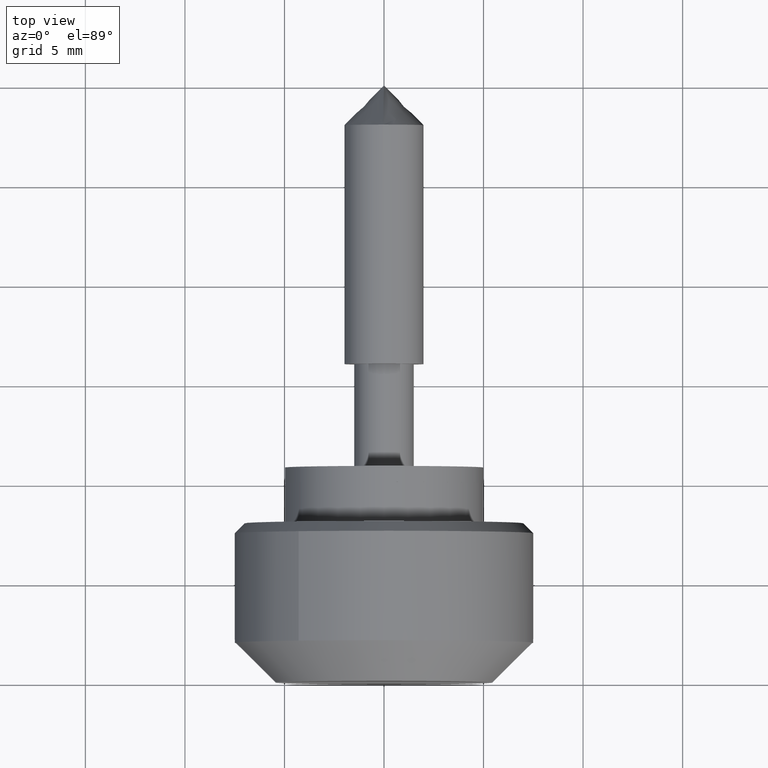
[diagram: clean part render]
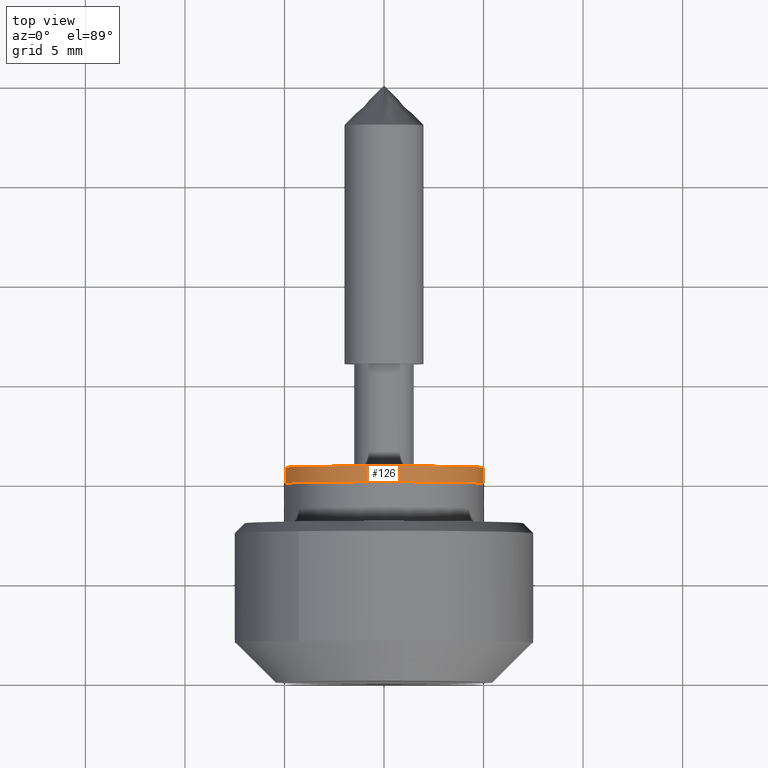
[diagram: same view with one face highlighted and labeled with its STEP entity id]
A machine part, top view. The second image highlights one B-rep face of the part: STEP entity #126.
In plain terms, the highlighted cylindrical surface (partial cylindrical patch) has radius 5 mm, axis along (0, 1, 0).
Its self-contained STEP definition (entity closure, byte-faithful):
#126=ADVANCED_FACE('',(#293),#292,.T.);
#292=CYLINDRICAL_SURFACE('',#610,5.00001823046E+00);
#293=FACE_OUTER_BOUND('',#611,.T.);
#607=CARTESIAN_POINT('',(-1.92801556232E-05,8.00000000000E-01,-1.66060660687E-05));
#608=DIRECTION('',(-0.00000000000E+00,1.00000000000E+00,-0.00000000000E+00));
#609=DIRECTION('',(-9.98135041686E-01,-0.00000000000E+00,6.10445620677E-02));
#610=AXIS2_PLACEMENT_3D('',#607,#608,#609);
#611=EDGE_LOOP('',(#842,#843,#844,#845));
#842=ORIENTED_EDGE('',*,*,#978,.F.);
#843=ORIENTED_EDGE('',*,*,#1004,.F.);
#844=ORIENTED_EDGE('',*,*,#964,.T.);
#845=ORIENTED_EDGE('',*,*,#1005,.T.);
#964=EDGE_CURVE('',#1063,#1064,#1065,.T.);
#978=EDGE_CURVE('',#1161,#1162,#1163,.T.);
#1004=EDGE_CURVE('',#1063,#1161,#1331,.T.);
#1005=EDGE_CURVE('',#1064,#1162,#1337,.T.);
#1063=VERTEX_POINT('',#1725);
#1064=VERTEX_POINT('',#1726);
#1065=CIRCLE('',#1730,5.00000000000E+00);
#1161=VERTEX_POINT('',#1789);
#1162=VERTEX_POINT('',#1790);
#1163=CIRCLE('',#1794,4.99999999999E+00);
#1331=LINE('',#1889,#1890);
#1337=LINE('',#1892,#1893);
#1725=CARTESIAN_POINT('',(4.99067412346E+00,8.00000000000E-01,-3.05240550074E-01));
#1726=CARTESIAN_POINT('',(-4.96504864790E+00,8.00000000000E-01,5.90162624962E-01));
#1727=CARTESIAN_POINT('',(3.23741033981E-13,8.00000000000E-01,7.42073069659E-13));
#1728=DIRECTION('',(-7.18883828636E-18,-1.00000000000E+00,-1.17537297075E-16));
#1729=DIRECTION('',(-9.98134824692E-01,-0.00000000000E+00,6.10481100150E-02));
#1730=AXIS2_PLACEMENT_3D('',#1727,#1728,#1729);
#1789=CARTESIAN_POINT('',(4.99067412510E+00,5.71452600000E-14,-3.05240523284E-01));
#1790=CARTESIAN_POINT('',(-4.96504866060E+00,-7.54986200000E-14,5.90162518162E-01));
#1791=CARTESIAN_POINT('',(-1.44195766438E-12,-8.56024970430E-14,1.02380326439E-11));
#1792=DIRECTION('',(-1.07523068042E-30,-1.00000000000E+00,1.71204994086E-14));
#1793=DIRECTION('',(-2.88391532877E-13,-1.71204994086E-14,-1.00000000000E+00));
#1794=AXIS2_PLACEMENT_3D('',#1791,#1792,#1793);
#1889=CARTESIAN_POINT('',(4.99067412346E+00,8.00000000000E-01,-3.05240550074E-01));
#1890=VECTOR('',#1891,8.00000000000E-01);
#1891=DIRECTION('',(2.04814054605E-09,-1.00000000000E+00,3.34872637953E-08));
#1892=CARTESIAN_POINT('',(-4.96504864790E+00,8.00000000000E-01,5.90162624962E-01));
#1893=VECTOR('',#1894,8.00000000000E-01);
#1894=DIRECTION('',(-1.58680546480E-08,-1.00000000000E+00,-1.33500215049E-07));